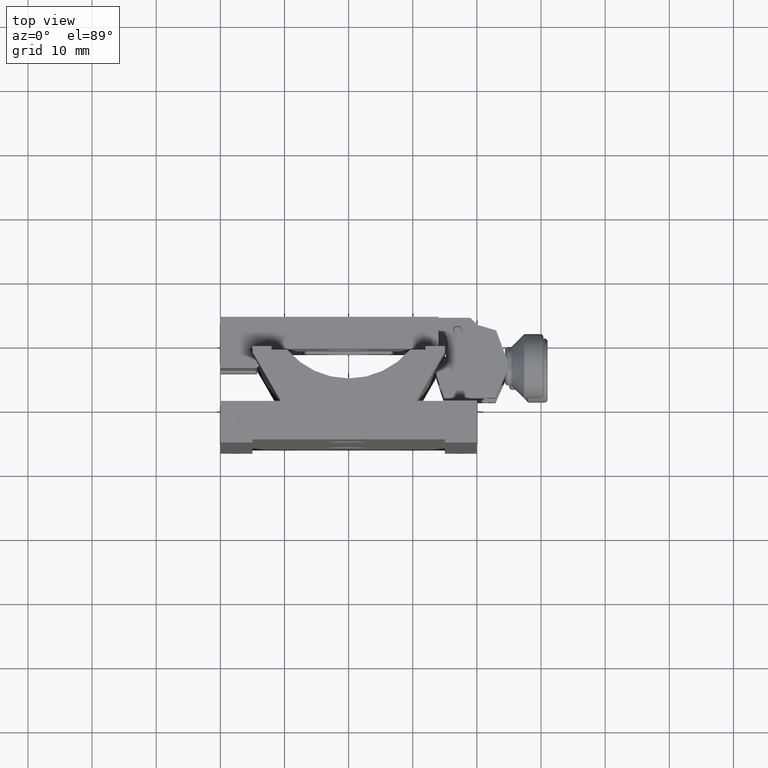
[diagram: clean part render]
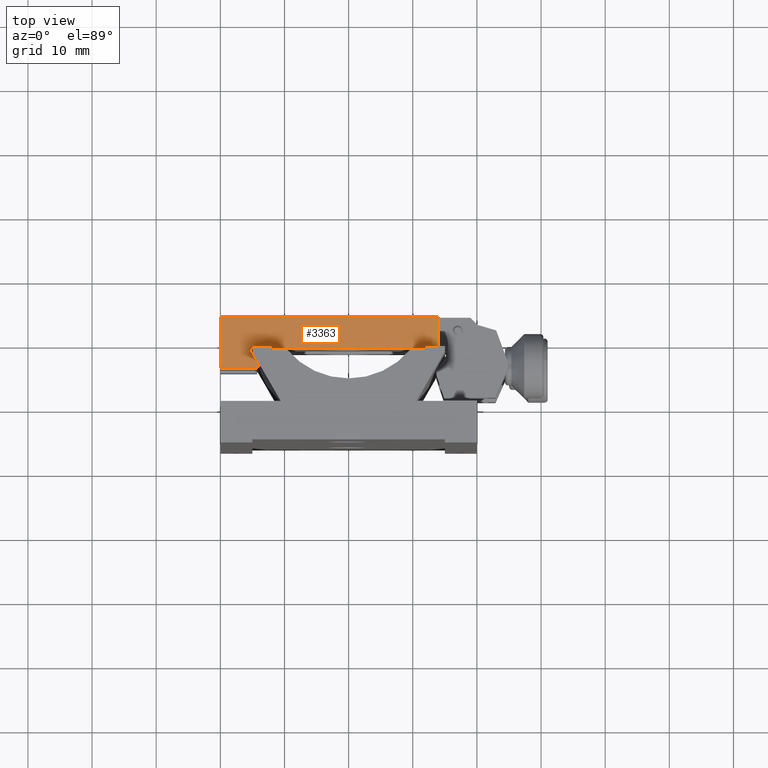
[diagram: same view with one face highlighted and labeled with its STEP entity id]
A machine part, top view. The second image highlights one B-rep face of the part: STEP entity #3363.
In plain terms, the highlighted planar face has unit normal (-0, 0, 1).
Its self-contained STEP definition (entity closure, byte-faithful):
#121 = EDGE_CURVE ( 'NONE', #916, #3081, #1410, .T. ) ;
#185 = VERTEX_POINT ( 'NONE', #2773 ) ;
#190 = ORIENTED_EDGE ( 'NONE', *, *, #2701, .T. ) ;
#322 = CARTESIAN_POINT ( 'NONE',  ( -15.49999999999984368, 8.500000000000007105, 28.41749253777902240 ) ) ;
#566 = CARTESIAN_POINT ( 'NONE',  ( 14.00000000000015987, 13.50000000000000888, 28.41749253777902240 ) ) ;
#740 = VECTOR ( 'NONE', #2348, 1000.000000000000000 ) ;
#842 = CARTESIAN_POINT ( 'NONE',  ( -19.99999999999985434, 5.500000000000007105, 28.41749253777902240 ) ) ;
#885 = DIRECTION ( 'NONE',  ( 0.000000000000000000, -1.000000000000000000, 0.000000000000000000 ) ) ;
#916 = VERTEX_POINT ( 'NONE', #1399 ) ;
#921 = CARTESIAN_POINT ( 'NONE',  ( -19.99999999999985434, 13.50000000000000888, 28.41749253777902240 ) ) ;
#1075 = VECTOR ( 'NONE', #1754, 1000.000000000000000 ) ;
#1137 = VERTEX_POINT ( 'NONE', #3540 ) ;
#1160 = VERTEX_POINT ( 'NONE', #4376 ) ;
#1193 = ORIENTED_EDGE ( 'NONE', *, *, #4923, .T. ) ;
#1234 = VERTEX_POINT ( 'NONE', #842 ) ;
#1292 = CARTESIAN_POINT ( 'NONE',  ( -19.99999999999985434, 5.500000000000007105, 28.41749253777902240 ) ) ;
#1347 = CARTESIAN_POINT ( 'NONE',  ( -19.99999999999985434, 13.50000000000000888, 28.41749253777902240 ) ) ;
#1389 = EDGE_LOOP ( 'NONE', ( #2669, #3056, #190, #2544, #1193, #4259, #2540 ) ) ;
#1399 = CARTESIAN_POINT ( 'NONE',  ( -15.49999999999984368, 8.500000000000007105, 28.41749253777902240 ) ) ;
#1410 = LINE ( 'NONE', #322, #740 ) ;
#1575 = PLANE ( 'NONE',  #3238 ) ;
#1629 = DIRECTION ( 'NONE',  ( 1.000000000000000000, 0.000000000000000000, 0.000000000000000000 ) ) ;
#1662 = LINE ( 'NONE', #1292, #4989 ) ;
#1670 = LINE ( 'NONE', #4235, #3270 ) ;
#1754 = DIRECTION ( 'NONE',  ( 1.170338304741205908E-16, -1.000000000000000000, 0.000000000000000000 ) ) ;
#1995 = CARTESIAN_POINT ( 'NONE',  ( -5.633974596215400865, 14.13397459621556429, 28.41749253777902240 ) ) ;
#2190 = CARTESIAN_POINT ( 'NONE',  ( 14.00000000000015987, 8.500000000000007105, 28.41749253777902240 ) ) ;
#2221 = EDGE_CURVE ( 'NONE', #185, #1160, #2970, .T. ) ;
#2348 = DIRECTION ( 'NONE',  ( 1.000000000000000000, 1.242535447991765058E-32, 0.000000000000000000 ) ) ;
#2499 = CARTESIAN_POINT ( 'NONE',  ( 1.561251128379126385E-13, 8.500000000000007105, 28.41749253777902240 ) ) ;
#2540 = ORIENTED_EDGE ( 'NONE', *, *, #121, .T. ) ;
#2544 = ORIENTED_EDGE ( 'NONE', *, *, #5006, .T. ) ;
#2669 = ORIENTED_EDGE ( 'NONE', *, *, #3051, .F. ) ;
#2701 = EDGE_CURVE ( 'NONE', #1160, #1234, #4536, .T. ) ;
#2773 = CARTESIAN_POINT ( 'NONE',  ( 14.00000000000016165, 13.50000000000000888, 28.41749253777902240 ) ) ;
#2823 = DIRECTION ( 'NONE',  ( 0.7071067811865474617, 0.7071067811865474617, -0.000000000000000000 ) ) ;
#2970 = LINE ( 'NONE', #921, #3958 ) ;
#3051 = EDGE_CURVE ( 'NONE', #185, #3081, #3793, .T. ) ;
#3056 = ORIENTED_EDGE ( 'NONE', *, *, #2221, .T. ) ;
#3081 = VERTEX_POINT ( 'NONE', #2190 ) ;
#3214 = DIRECTION ( 'NONE',  ( -0.000000000000000000, 0.000000000000000000, 1.000000000000000000 ) ) ;
#3238 = AXIS2_PLACEMENT_3D ( 'NONE', #2499, #3214, #1629 ) ;
#3270 = VECTOR ( 'NONE', #3800, 1000.000000000000000 ) ;
#3363 = ADVANCED_FACE ( 'NONE', ( #5256 ), #1575, .T. ) ;
#3369 = DIRECTION ( 'NONE',  ( -1.000000000000000000, -0.000000000000000000, -0.000000000000000000 ) ) ;
#3540 = CARTESIAN_POINT ( 'NONE',  ( -13.95096189432317324, 5.816987298107793691, 28.41749253777902240 ) ) ;
#3543 = CARTESIAN_POINT ( 'NONE',  ( -14.26794919243095983, 5.500000000000007105, 28.41749253777902240 ) ) ;
#3793 = LINE ( 'NONE', #566, #1075 ) ;
#3800 = DIRECTION ( 'NONE',  ( -0.5000000000000041078, 0.8660254037844363761, 0.000000000000000000 ) ) ;
#3958 = VECTOR ( 'NONE', #3369, 1000.000000000000000 ) ;
#3966 = VECTOR ( 'NONE', #2823, 1000.000000000000114 ) ;
#4235 = CARTESIAN_POINT ( 'NONE',  ( -13.76794919243094739, 5.500000000000007105, 28.41749253777902240 ) ) ;
#4259 = ORIENTED_EDGE ( 'NONE', *, *, #4698, .T. ) ;
#4376 = CARTESIAN_POINT ( 'NONE',  ( -19.99999999999985434, 13.50000000000000888, 28.41749253777902240 ) ) ;
#4536 = LINE ( 'NONE', #1347, #5110 ) ;
#4625 = DIRECTION ( 'NONE',  ( 1.000000000000000000, 0.000000000000000000, 0.000000000000000000 ) ) ;
#4698 = EDGE_CURVE ( 'NONE', #1137, #916, #1670, .T. ) ;
#4839 = LINE ( 'NONE', #1995, #3966 ) ;
#4923 = EDGE_CURVE ( 'NONE', #5303, #1137, #4839, .T. ) ;
#4989 = VECTOR ( 'NONE', #4625, 1000.000000000000000 ) ;
#5006 = EDGE_CURVE ( 'NONE', #1234, #5303, #1662, .T. ) ;
#5110 = VECTOR ( 'NONE', #885, 1000.000000000000000 ) ;
#5256 = FACE_OUTER_BOUND ( 'NONE', #1389, .T. ) ;
#5303 = VERTEX_POINT ( 'NONE', #3543 ) ;